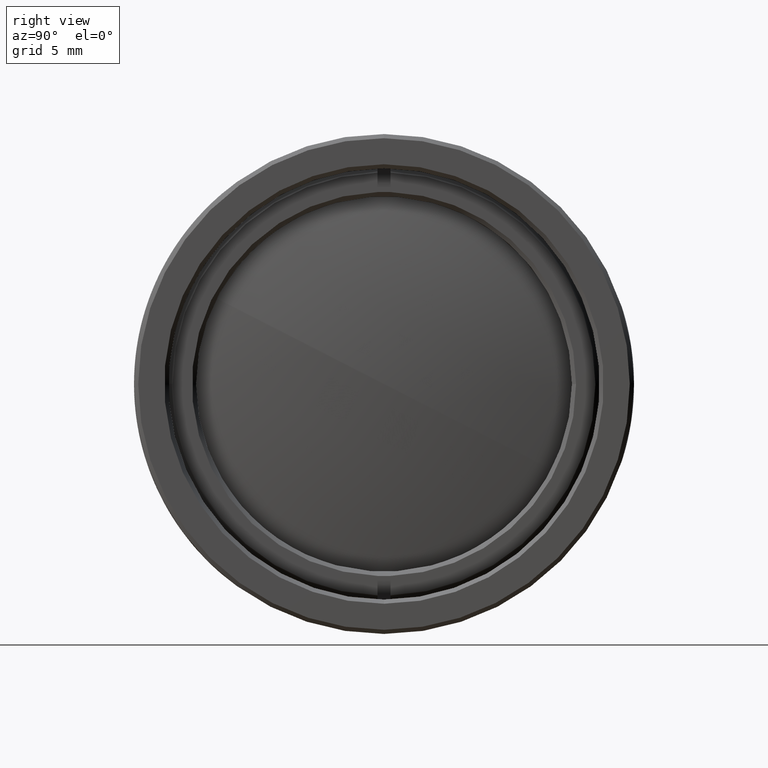
[diagram: clean part render]
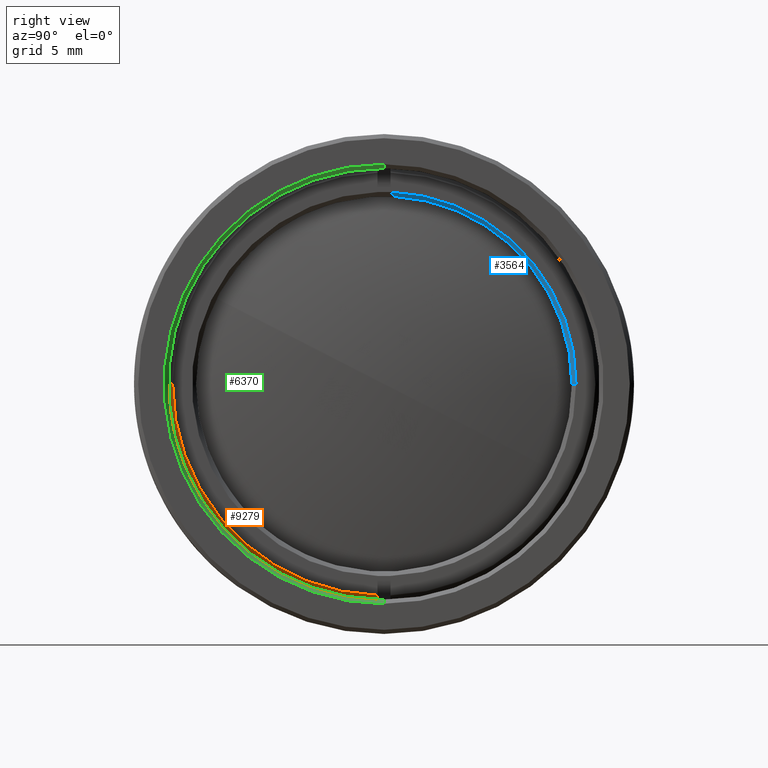
[diagram: same view with three faces highlighted in distinct colors, each labeled with its STEP entity id]
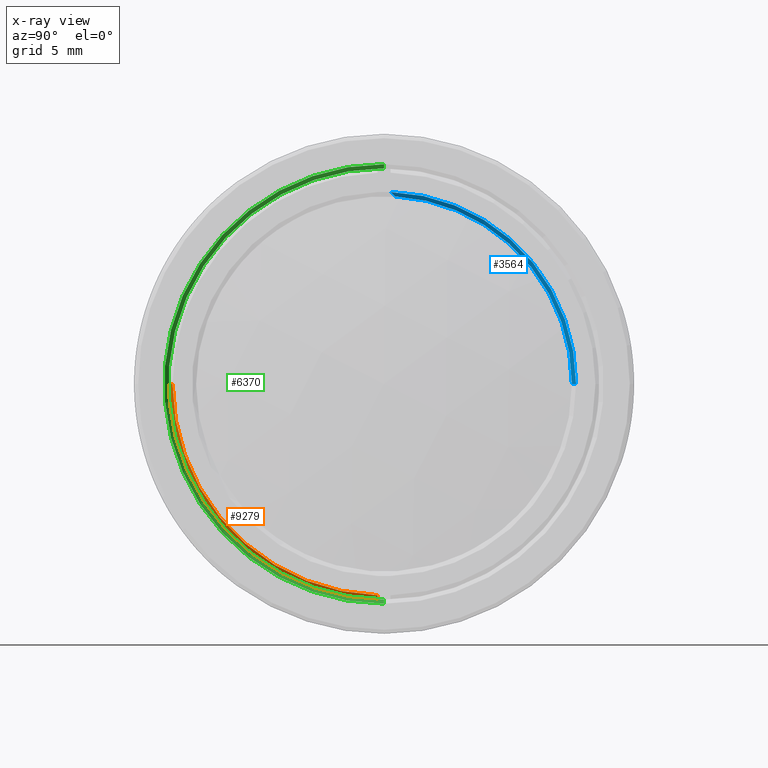
[diagram: x-ray of the same camera — body ghosted, the three highlighted faces saturated]
A machine part, right view with three faces highlighted in distinct colors.
The next image is the same camera in x-ray (body ghosted, the three faces saturated) — at least one of them is partly hidden behind the body in this view.
Their STEP definitions:

[orange] entity #9279 — the highlighted conical surface has half-angle 30.029 deg.
#31 = FACE_OUTER_BOUND ( 'NONE', #6950, .T. ) ;
#936 = ORIENTED_EDGE ( 'NONE', *, *, #9416, .F. ) ;
#985 = VERTEX_POINT ( 'NONE', #6860 ) ;
#1046 = CIRCLE ( 'NONE', #9505, 13.14449999999999896 ) ;
#1066 = VECTOR ( 'NONE', #1457, 1000.000000000000114 ) ;
#1205 = DIRECTION ( 'NONE',  ( 0.0000000000000000000, -1.000000000000000000, 0.0000000000000000000 ) ) ;
#1457 = DIRECTION ( 'NONE',  ( -0.8657687109980182205, -0.5004443416173570691, 0.0000000000000000000 ) ) ;
#1797 = VERTEX_POINT ( 'NONE', #2021 ) ;
#1809 = DIRECTION ( 'NONE',  ( -1.000000000000000000, 0.0000000000000000000, 0.0000000000000000000 ) ) ;
#2021 = CARTESIAN_POINT ( 'NONE',  ( -3.841224792579738700, -13.14449999999999896, 1.609736985139238242E-15 ) ) ;
#2348 = CARTESIAN_POINT ( 'NONE',  ( -3.401804792579739445, 0.0000000000000000000, 0.0000000000000000000 ) ) ;
#2803 = CARTESIAN_POINT ( 'NONE',  ( -3.841224792579738700, 0.0000000000000000000, 0.0000000000000000000 ) ) ;
#3350 = DIRECTION ( 'NONE',  ( 0.0000000000000000000, -1.000000000000000000, 0.0000000000000000000 ) ) ;
#3362 = ORIENTED_EDGE ( 'NONE', *, *, #6937, .F. ) ;
#3366 = CARTESIAN_POINT ( 'NONE',  ( -3.401804792579739445, -12.89049999999999585, 0.0000000000000000000 ) ) ;
#3690 = AXIS2_PLACEMENT_3D ( 'NONE', #8744, #1809, #3350 ) ;
#3799 = ORIENTED_EDGE ( 'NONE', *, *, #4527, .T. ) ;
#3891 = DIRECTION ( 'NONE',  ( 0.0000000000000000000, -1.000000000000000000, 0.0000000000000000000 ) ) ;
#4527 = EDGE_CURVE ( 'NONE', #6889, #1797, #9803, .T. ) ;
#4823 = EDGE_CURVE ( 'NONE', #985, #8925, #8887, .T. ) ;
#5235 = CARTESIAN_POINT ( 'NONE',  ( -3.694751129237467957, -0.3968749999999988676, -13.05380168714435207 ) ) ;
#5906 = CIRCLE ( 'NONE', #6300, 12.89049999999999585 ) ;
#5939 = ORIENTED_EDGE ( 'NONE', *, *, #4823, .F. ) ;
#5982 = CARTESIAN_POINT ( 'NONE',  ( -3.841224792579740477, -0.3968749999999988676, -13.13850716346324354 ) ) ;
#6300 = AXIS2_PLACEMENT_3D ( 'NONE', #2348, #7760, #3891 ) ;
#6625 = CONICAL_SURFACE ( 'NONE', #3690, 13.14449999999999896, 0.5241119331426207228 ) ;
#6860 = CARTESIAN_POINT ( 'NONE',  ( -3.401804792579739445, -0.3968749999999988121, -12.88438902254875629 ) ) ;
#6889 = VERTEX_POINT ( 'NONE', #3366 ) ;
#6937 = EDGE_CURVE ( 'NONE', #8925, #1797, #1046, .T. ) ;
#6950 = EDGE_LOOP ( 'NONE', ( #936, #3799, #3362, #5939 ) ) ;
#7461 = DIRECTION ( 'NONE',  ( -1.000000000000000000, 0.0000000000000000000, 0.0000000000000000000 ) ) ;
#7760 = DIRECTION ( 'NONE',  ( 1.000000000000000000, -0.0000000000000000000, -0.0000000000000000000 ) ) ;
#8744 = CARTESIAN_POINT ( 'NONE',  ( -3.841224792579738700, 0.0000000000000000000, 0.0000000000000000000 ) ) ;
#8887 = B_SPLINE_CURVE_WITH_KNOTS ( 'NONE', 3,
 ( #9585, #9644, #5235, #5982 ),
 .UNSPECIFIED., .F., .F.,
 ( 4, 4 ),
 ( 0.0000000000000000000, 0.0005076080830146785690 ),
 .UNSPECIFIED. ) ;
#8925 = VERTEX_POINT ( 'NONE', #9035 ) ;
#9035 = CARTESIAN_POINT ( 'NONE',  ( -3.841224792579740477, -0.3968749999999988676, -13.13850716346324354 ) ) ;
#9126 = CARTESIAN_POINT ( 'NONE',  ( -3.841224792579738700, -13.14449999999999896, 0.0000000000000000000 ) ) ;
#9279 = ADVANCED_FACE ( 'NONE', ( #31 ), #6625, .T. ) ;
#9416 = EDGE_CURVE ( 'NONE', #6889, #985, #5906, .T. ) ;
#9505 = AXIS2_PLACEMENT_3D ( 'NONE', #2803, #7461, #1205 ) ;
#9585 = CARTESIAN_POINT ( 'NONE',  ( -3.401804792579739445, -0.3968749999999988121, -12.88438902254875629 ) ) ;
#9644 = CARTESIAN_POINT ( 'NONE',  ( -3.548277789394626680, -0.3968749999999988121, -12.96909565142383869 ) ) ;
#9803 = LINE ( 'NONE', #9126, #1066 ) ;

[blue] entity #3564 — the highlighted conical surface has half-angle 45 deg.
#19 = CARTESIAN_POINT ( 'NONE',  ( -3.401804792579739445, 11.70940000000000225, 0.0000000000000000000 ) ) ;
#28 = EDGE_CURVE ( 'NONE', #8272, #2784, #9321, .T. ) ;
#165 = VERTEX_POINT ( 'NONE', #19 ) ;
#266 = CARTESIAN_POINT ( 'NONE',  ( -3.401953968749118484, 0.3968749999999985345, 11.70252302239790865 ) ) ;
#391 = ORIENTED_EDGE ( 'NONE', *, *, #28, .F. ) ;
#650 = CARTESIAN_POINT ( 'NONE',  ( -3.655804792579738116, 11.45540000000000092, 0.0000000000000000000 ) ) ;
#679 = CIRCLE ( 'NONE', #982, 11.70940000000000225 ) ;
#691 = CARTESIAN_POINT ( 'NONE',  ( -3.571904903594202541, 0.5676885094463733905, 11.52568547892503403 ) ) ;
#982 = AXIS2_PLACEMENT_3D ( 'NONE', #6570, #3548, #8239 ) ;
#1015 = CARTESIAN_POINT ( 'NONE',  ( -3.401854517969714387, 0.3968749999999985345, 11.70262253035138045 ) ) ;
#1190 = ORIENTED_EDGE ( 'NONE', *, *, #2397, .T. ) ;
#1253 = ORIENTED_EDGE ( 'NONE', *, *, #7030, .F. ) ;
#1464 = CARTESIAN_POINT ( 'NONE',  ( -3.401804792579739445, 0.3968749999999985345, 11.70267228432784279 ) ) ;
#1968 = ORIENTED_EDGE ( 'NONE', *, *, #5597, .F. ) ;
#2146 = CARTESIAN_POINT ( 'NONE',  ( -3.655804792579738116, 0.6536054097623426040, 11.43673857042860931 ) ) ;
#2251 = CARTESIAN_POINT ( 'NONE',  ( -3.655804792579738116, 0.0000000000000000000, 0.0000000000000000000 ) ) ;
#2397 = EDGE_CURVE ( 'NONE', #9839, #165, #2828, .T. ) ;
#2761 = DIRECTION ( 'NONE',  ( 0.0000000000000000000, 1.000000000000000000, 0.0000000000000000000 ) ) ;
#2784 = VERTEX_POINT ( 'NONE', #266 ) ;
#2828 = LINE ( 'NONE', #9086, #6803 ) ;
#2959 = DIRECTION ( 'NONE',  ( 1.000000000000000000, -0.0000000000000000000, -0.0000000000000000000 ) ) ;
#3314 = CARTESIAN_POINT ( 'NONE',  ( -3.401904243359507696, 0.3968749999999985345, 11.70257277637473514 ) ) ;
#3493 = EDGE_LOOP ( 'NONE', ( #7102, #1190, #1253, #1968, #391 ) ) ;
#3548 = DIRECTION ( 'NONE',  ( -1.000000000000000000, 0.0000000000000000000, 0.0000000000000000000 ) ) ;
#3564 = ADVANCED_FACE ( 'NONE', ( #9576 ), #6927, .F. ) ;
#3657 = DIRECTION ( 'NONE',  ( 1.000000000000000000, 0.0000000000000000000, 0.0000000000000000000 ) ) ;
#5057 = CIRCLE ( 'NONE', #8245, 11.45540000000000092 ) ;
#5597 = EDGE_CURVE ( 'NONE', #2784, #6410, #7399, .T. ) ;
#5695 = CARTESIAN_POINT ( 'NONE',  ( -3.401804792579739445, 0.3968749999999985345, 11.70267228432784279 ) ) ;
#6152 = CARTESIAN_POINT ( 'NONE',  ( -3.401953968749118484, 0.3968749999999985345, 11.70252302239790865 ) ) ;
#6410 = VERTEX_POINT ( 'NONE', #1464 ) ;
#6570 = CARTESIAN_POINT ( 'NONE',  ( -3.401804792579739445, 0.0000000000000000000, 0.0000000000000000000 ) ) ;
#6803 = VECTOR ( 'NONE', #8956, 1000.000000000000114 ) ;
#6927 = CONICAL_SURFACE ( 'NONE', #9560, 11.70940000000000225, 0.7853981633974517207 ) ;
#7030 = EDGE_CURVE ( 'NONE', #6410, #165, #679, .T. ) ;
#7102 = ORIENTED_EDGE ( 'NONE', *, *, #9087, .F. ) ;
#7399 = B_SPLINE_CURVE_WITH_KNOTS ( 'NONE', 3,
 ( #8091, #3314, #1015, #5695 ),
 .UNSPECIFIED., .F., .F.,
 ( 4, 4 ),
 ( 0.0000000000000000000, 2.110276125024536685E-07 ),
 .UNSPECIFIED. ) ;
#8091 = CARTESIAN_POINT ( 'NONE',  ( -3.401953968749118484, 0.3968749999999985345, 11.70252302239790865 ) ) ;
#8239 = DIRECTION ( 'NONE',  ( 0.0000000000000000000, -1.000000000000000000, 0.0000000000000000000 ) ) ;
#8245 = AXIS2_PLACEMENT_3D ( 'NONE', #2251, #2959, #9142 ) ;
#8272 = VERTEX_POINT ( 'NONE', #2146 ) ;
#8324 = CARTESIAN_POINT ( 'NONE',  ( -3.401804792579739445, 0.0000000000000000000, 0.0000000000000000000 ) ) ;
#8427 = CARTESIAN_POINT ( 'NONE',  ( -3.487264190513255535, 0.4821189228959867901, 11.61427282503485969 ) ) ;
#8956 = DIRECTION ( 'NONE',  ( 0.7071067811865451302, 0.7071067811865500152, 0.0000000000000000000 ) ) ;
#9086 = CARTESIAN_POINT ( 'NONE',  ( -3.401804792579739445, 11.70940000000000225, 0.0000000000000000000 ) ) ;
#9087 = EDGE_CURVE ( 'NONE', #9839, #8272, #5057, .T. ) ;
#9142 = DIRECTION ( 'NONE',  ( 0.0000000000000000000, -1.000000000000000000, 0.0000000000000000000 ) ) ;
#9321 = B_SPLINE_CURVE_WITH_KNOTS ( 'NONE', 3,
 ( #10026, #691, #8427, #6152 ),
 .UNSPECIFIED., .F., .F.,
 ( 4, 4 ),
 ( 0.0000000000000000000, 0.0004483214460237729343 ),
 .UNSPECIFIED. ) ;
#9560 = AXIS2_PLACEMENT_3D ( 'NONE', #8324, #3657, #2761 ) ;
#9576 = FACE_OUTER_BOUND ( 'NONE', #3493, .T. ) ;
#9839 = VERTEX_POINT ( 'NONE', #650 ) ;
#10026 = CARTESIAN_POINT ( 'NONE',  ( -3.655804792579738116, 0.6536054097623426040, 11.43673857042860931 ) ) ;

[green] entity #6370 — the highlighted conical surface has half-angle 30 deg.
#12 = CARTESIAN_POINT ( 'NONE',  ( -0.4399409051224942857, 0.0000000000000000000, -13.14449999999999896 ) ) ;
#33 = CARTESIAN_POINT ( 'NONE',  ( -1.944126793646422548E-16, 0.0000000000000000000, -13.39849999999999319 ) ) ;
#87 = AXIS2_PLACEMENT_3D ( 'NONE', #9974, #1545, #2216 ) ;
#458 = VECTOR ( 'NONE', #493, 999.9999999999998863 ) ;
#493 = DIRECTION ( 'NONE',  ( 0.8660254037844421493, 6.123233995736693313E-17, 0.4999999999999941713 ) ) ;
#549 = EDGE_CURVE ( 'NONE', #1686, #2147, #8659, .T. ) ;
#929 = VERTEX_POINT ( 'NONE', #7678 ) ;
#1099 = EDGE_CURVE ( 'NONE', #2147, #8793, #1342, .T. ) ;
#1342 = LINE ( 'NONE', #12, #2947 ) ;
#1545 = DIRECTION ( 'NONE',  ( 1.000000000000000000, 0.0000000000000000000, 0.0000000000000000000 ) ) ;
#1576 = ORIENTED_EDGE ( 'NONE', *, *, #3676, .T. ) ;
#1628 = ORIENTED_EDGE ( 'NONE', *, *, #549, .F. ) ;
#1686 = VERTEX_POINT ( 'NONE', #7187 ) ;
#2147 = VERTEX_POINT ( 'NONE', #4472 ) ;
#2216 = DIRECTION ( 'NONE',  ( 0.0000000000000000000, 0.0000000000000000000, -1.000000000000000000 ) ) ;
#2947 = VECTOR ( 'NONE', #7096, 999.9999999999998863 ) ;
#3388 = FACE_OUTER_BOUND ( 'NONE', #4847, .T. ) ;
#3676 = EDGE_CURVE ( 'NONE', #1686, #929, #8275, .T. ) ;
#3928 = DIRECTION ( 'NONE',  ( 0.0000000000000000000, 0.0000000000000000000, -1.000000000000000000 ) ) ;
#4197 = CARTESIAN_POINT ( 'NONE',  ( -1.944126793646422548E-16, 0.0000000000000000000, 0.0000000000000000000 ) ) ;
#4472 = CARTESIAN_POINT ( 'NONE',  ( -0.4399409051224941747, 0.0000000000000000000, -13.14449999999999896 ) ) ;
#4847 = EDGE_LOOP ( 'NONE', ( #1628, #1576, #6935, #7862 ) ) ;
#5094 = AXIS2_PLACEMENT_3D ( 'NONE', #4197, #8773, #9596 ) ;
#5494 = EDGE_CURVE ( 'NONE', #8793, #929, #7635, .T. ) ;
#6056 = CONICAL_SURFACE ( 'NONE', #8803, 13.14449999999999896, 0.5235987755982920433 ) ;
#6098 = CARTESIAN_POINT ( 'NONE',  ( -0.4399409051224942857, 0.0000000000000000000, 0.0000000000000000000 ) ) ;
#6370 = ADVANCED_FACE ( 'NONE', ( #3388 ), #6056, .F. ) ;
#6935 = ORIENTED_EDGE ( 'NONE', *, *, #5494, .F. ) ;
#7096 = DIRECTION ( 'NONE',  ( 0.8660254037844421493, 0.0000000000000000000, -0.4999999999999941713 ) ) ;
#7187 = CARTESIAN_POINT ( 'NONE',  ( -0.4399409051224941747, 1.609736985139238242E-15, 13.14449999999999896 ) ) ;
#7635 = CIRCLE ( 'NONE', #5094, 13.39849999999999319 ) ;
#7678 = CARTESIAN_POINT ( 'NONE',  ( -1.944126793646422548E-16, 1.640843013837580427E-15, 13.39849999999999319 ) ) ;
#7761 = DIRECTION ( 'NONE',  ( 1.000000000000000000, 0.0000000000000000000, 0.0000000000000000000 ) ) ;
#7862 = ORIENTED_EDGE ( 'NONE', *, *, #1099, .F. ) ;
#8275 = LINE ( 'NONE', #9022, #458 ) ;
#8659 = CIRCLE ( 'NONE', #87, 13.14449999999999896 ) ;
#8773 = DIRECTION ( 'NONE',  ( -1.000000000000000000, 0.0000000000000000000, 0.0000000000000000000 ) ) ;
#8793 = VERTEX_POINT ( 'NONE', #33 ) ;
#8803 = AXIS2_PLACEMENT_3D ( 'NONE', #6098, #7761, #3928 ) ;
#9022 = CARTESIAN_POINT ( 'NONE',  ( -0.4399409051224942857, 1.609736985139238242E-15, 13.14449999999999896 ) ) ;
#9596 = DIRECTION ( 'NONE',  ( 0.0000000000000000000, 0.0000000000000000000, -1.000000000000000000 ) ) ;
#9974 = CARTESIAN_POINT ( 'NONE',  ( -0.4399409051224941747, 0.0000000000000000000, 0.0000000000000000000 ) ) ;